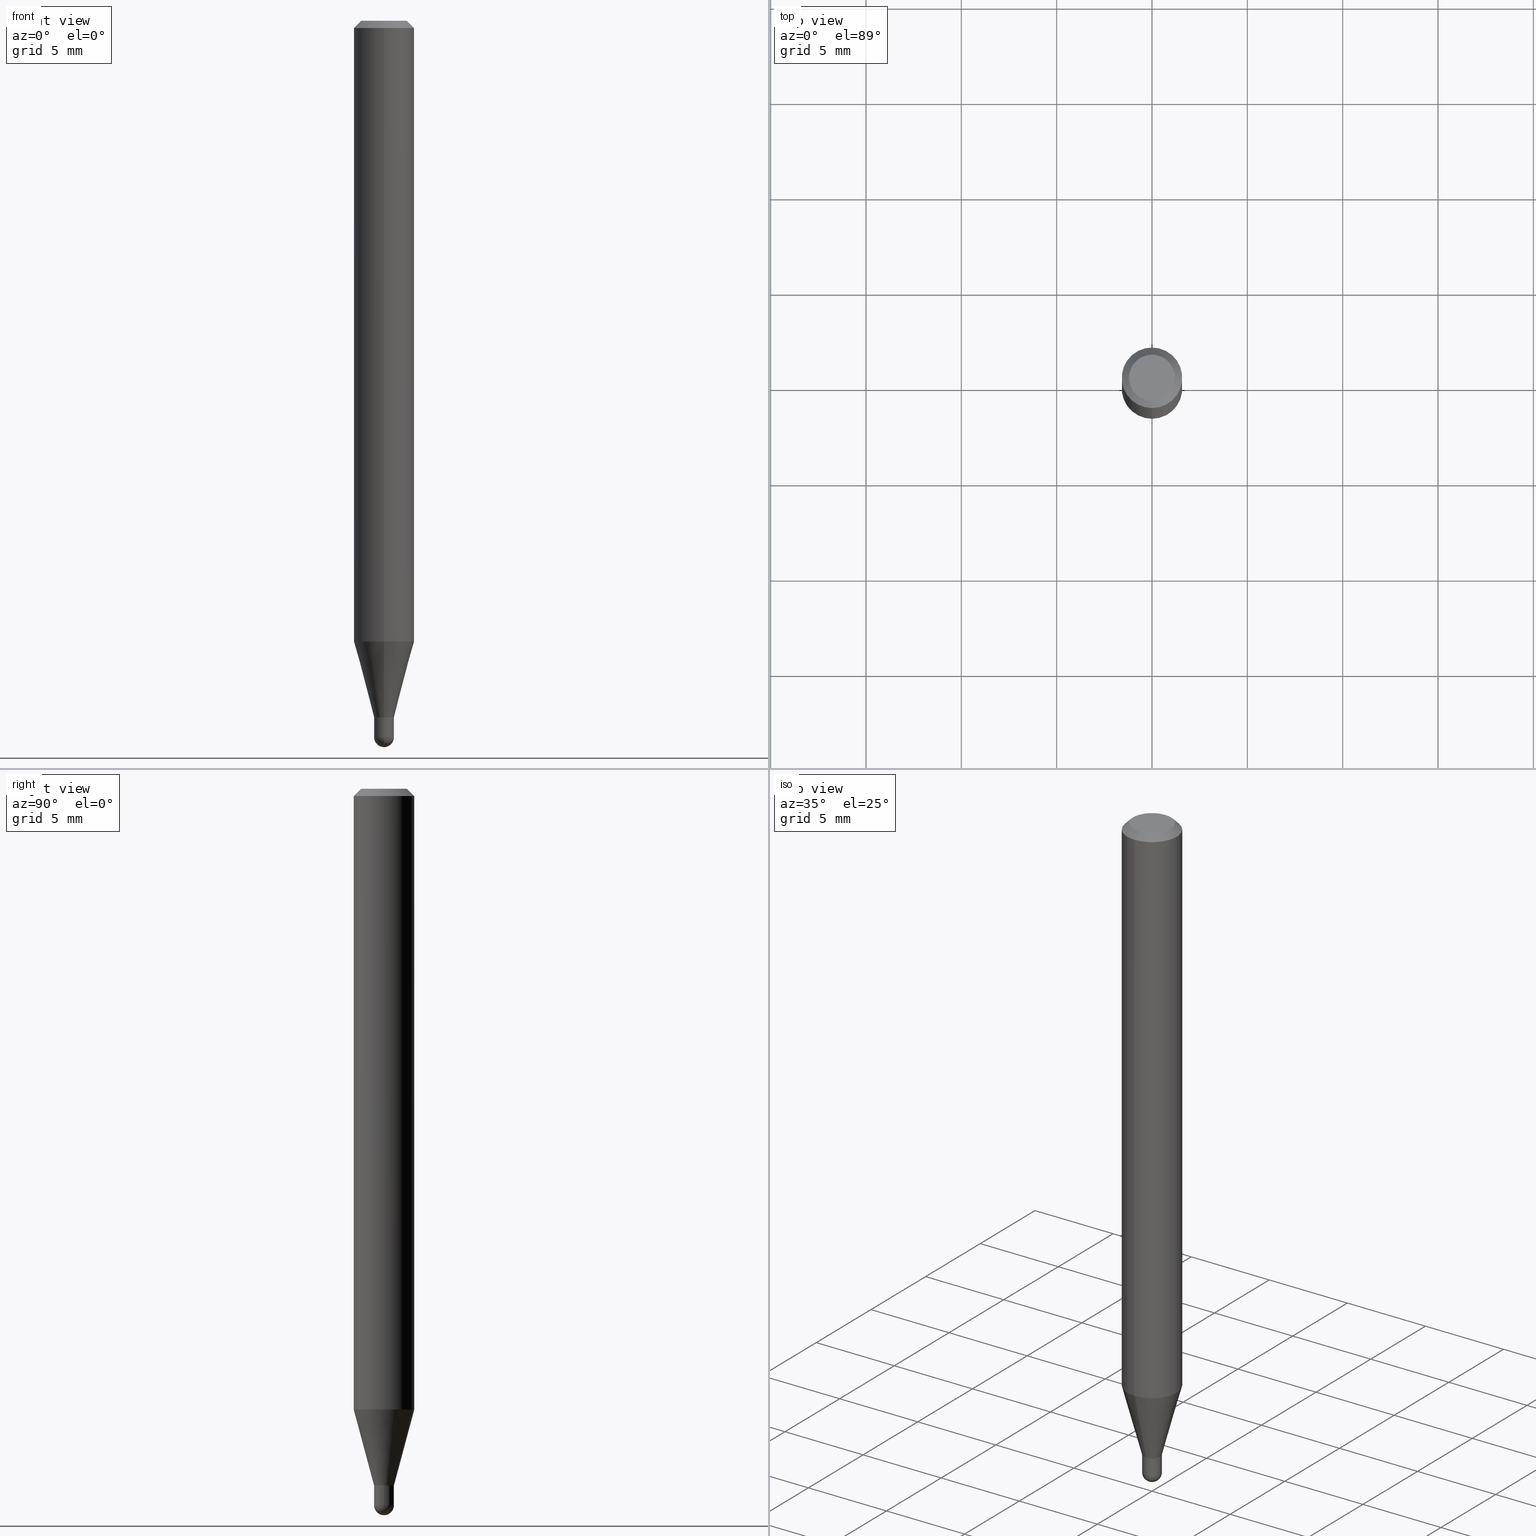
[diagram: canonical four-view strip — front | top / right | iso, engineering-drawing reading convention]
A machine part, canonical four-view strip (front | top / right | iso — engineering-drawing reading convention). The complete STEP part file that produces these views, byte-faithful:
ISO-10303-21;
HEADER;
FILE_DESCRIPTION (( 'STEP AP203' ),
    '1' );
FILE_NAME ('01398.STEP',
    '2024-03-07T20:21:30',
    ( '' ),
    ( '' ),
    'SwSTEP 2.0',
    'SolidWorks 2023',
    '' );
FILE_SCHEMA (( 'CONFIG_CONTROL_DESIGN' ));
ENDSEC;

DATA;
#1 = CARTESIAN_POINT ( 'NONE',  ( 3.668218837079728952E-31, -5.237199628362747541E-17, -0.01500000000000000812 ) ) ;
#2 = PERSON_AND_ORGANIZATION_ROLE ( 'classification_officer' ) ;
#3 = EDGE_LOOP ( 'NONE', ( #249, #281, #219, #171 ) ) ;
#4 = CARTESIAN_POINT ( 'NONE',  ( 0.000000000000000000, 0.000000000000000000, 0.000000000000000000 ) ) ;
#5 = VERTEX_POINT ( 'NONE', #375 ) ;
#6 = CARTESIAN_POINT ( 'NONE',  ( 3.517821864759459071E-29, -5.022474443599872602E-15, -1.438500000000000334 ) ) ;
#7 = ORIENTED_EDGE ( 'NONE', *, *, #144, .T. ) ;
#8 = CIRCLE ( 'NONE', #387, 0.02050000000000011535 ) ;
#9 = CIRCLE ( 'NONE', #301, 0.02050000000000000086 ) ;
#10 = PLANE ( 'NONE',  #308 ) ;
#11 = EDGE_LOOP ( 'NONE', ( #134, #333, #376, #290 ) ) ;
#12 = COORDINATED_UNIVERSAL_TIME_OFFSET ( 5, 0, .BEHIND. ) ;
#13 = DIRECTION ( 'NONE',  ( -2.445479224719817293E-29, 3.491466418908496323E-15, 1.000000000000000000 ) ) ;
#14 = EDGE_LOOP ( 'NONE', ( #81, #296, #241, #278 ) ) ;
#15 = EDGE_LOOP ( 'NONE', ( #240, #491, #392, #142 ) ) ;
#16 = CC_DESIGN_DATE_AND_TIME_ASSIGNMENT ( #28, #185, ( #71 ) ) ;
#17 = CARTESIAN_POINT ( 'NONE',  ( -4.364351673553916201E-16, -0.06250000000000000000, 2.182166511817810202E-16 ) ) ;
#18 = AXIS2_PLACEMENT_3D ( 'NONE', #80, #82, #159 ) ;
#19 = ADVANCED_FACE ( 'NONE', ( #366 ), #258, .T. ) ;
#20 = DIRECTION ( 'NONE',  ( 6.982962677686265922E-15, 1.000000000000000000, -3.491466418908496323E-15 ) ) ;
#21 = MANIFOLD_SOLID_BREP ( 'Body-Move/Copy2[1]', #191 ) ;
#22 = CARTESIAN_POINT ( 'NONE',  ( 3.516599125147098644E-29, -5.020728710390418378E-15, -1.438000000000000389 ) ) ;
#23 = ORIENTED_EDGE ( 'NONE', *, *, #34, .T. ) ;
#24 =( NAMED_UNIT ( * ) SI_UNIT ( $, .STERADIAN. ) SOLID_ANGLE_UNIT ( ) );
#25 = VERTEX_POINT ( 'NONE', #303 ) ;
#26 = AXIS2_PLACEMENT_3D ( 'NONE', #365, #166, #322 ) ;
#27 = CARTESIAN_POINT ( 'NONE',  ( 3.134502450708113125E-29, -4.475200580731833085E-15, -1.281753866082112392 ) ) ;
#28 = DATE_AND_TIME ( #106, #283 ) ;
#29 = CARTESIAN_POINT ( 'NONE',  ( 3.618071098750910685E-29, -5.165646640818435742E-15, -1.479500000000000481 ) ) ;
#30 = CARTESIAN_POINT ( 'NONE',  ( 2.166946058973634452E-46, -3.093798270708835562E-32, -8.861028288726947294E-18 ) ) ;
#31 = SPHERICAL_SURFACE ( 'NONE', #418, 0.02050000000000011535 ) ;
#32 = PRODUCT ( '01398', '01398', '', ( #500 ) ) ;
#33 = APPLICATION_CONTEXT ( 'configuration controlled 3d designs of mechanical parts and assemblies' ) ;
#34 = EDGE_CURVE ( 'NONE', #209, #314, #439, .T. ) ;
#35 = EDGE_CURVE ( 'NONE', #314, #105, #183, .T. ) ;
#36 = DIRECTION ( 'NONE',  ( -6.982962677686265133E-15, -1.000000000000000000, 0.000000000000000000 ) ) ;
#37 = DIRECTION ( 'NONE',  ( -6.982962677686265922E-15, -1.000000000000000000, 4.370956789862821150E-15 ) ) ;
#38 = ADVANCED_FACE ( 'NONE', ( #117 ), #506, .T. ) ;
#39 = CARTESIAN_POINT ( 'NONE',  ( -1.431507348925679025E-16, -0.02049999999999992453, 7.157506158762391154E-17 ) ) ;
#40 = EDGE_CURVE ( 'NONE', #105, #479, #459, .T. ) ;
#41 = ORIENTED_EDGE ( 'NONE', *, *, #237, .T. ) ;
#42 = CARTESIAN_POINT ( 'NONE',  ( -1.396592535536901362E-16, -0.02000000000000502418, -1.438500000000000334 ) ) ;
#43 = VECTOR ( 'NONE', #339, 39.37007874015748143 ) ;
#44 = DIRECTION ( 'NONE',  ( -2.445479224719817573E-29, 3.491466418908496323E-15, 1.000000000000000000 ) ) ;
#45 = ORIENTED_EDGE ( 'NONE', *, *, #379, .T. ) ;
#46 = DIRECTION ( 'NONE',  ( -6.982962677686265922E-15, -1.000000000000000000, 3.483106191921935554E-15 ) ) ;
#47 = DATE_AND_TIME ( #430, #371 ) ;
#48 = DIRECTION ( 'NONE',  ( -6.982962677686267499E-15, -1.000000000000000000, 0.000000000000000000 ) ) ;
#49 = FACE_OUTER_BOUND ( 'NONE', #443, .T. ) ;
#50 = ORIENTED_EDGE ( 'NONE', *, *, #379, .F. ) ;
#51 = CALENDAR_DATE ( 2024, 7, 3 ) ;
#52 = CARTESIAN_POINT ( 'NONE',  ( 3.517821864759459071E-29, -5.022474443599872602E-15, -1.438500000000000334 ) ) ;
#53 = VERTEX_POINT ( 'NONE', #145 ) ;
#54 = EDGE_CURVE ( 'NONE', #409, #167, #291, .T. ) ;
#55 = DIRECTION ( 'NONE',  ( 1.000000000000000000, -6.982962677686262766E-15, 0.000000000000000000 ) ) ;
#56 = FACE_OUTER_BOUND ( 'NONE', #462, .T. ) ;
#57 = ORIENTED_EDGE ( 'NONE', *, *, #127, .T. ) ;
#58 = CARTESIAN_POINT ( 'NONE',  ( 3.517806877697320021E-29, -5.022495905925865349E-15, -1.438500000000000334 ) ) ;
#59 = AXIS2_PLACEMENT_3D ( 'NONE', #4, #44, #154 ) ;
#60 = DIRECTION ( 'NONE',  ( 2.445479224719817293E-29, -3.491466418908496323E-15, -1.000000000000000000 ) ) ;
#61 = ORGANIZATION ( 'UNSPECIFIED', 'UNSPECIFIED', '' ) ;
#62 = VERTEX_POINT ( 'NONE', #70 ) ;
#63 = CARTESIAN_POINT ( 'NONE',  ( 4.440892098500625669E-16, 0.06250000000000000000, -2.182166511817810202E-16 ) ) ;
#64 = EDGE_LOOP ( 'NONE', ( #129, #50, #323, #132 ) ) ;
#65 = COORDINATED_UNIVERSAL_TIME_OFFSET ( 5, 0, .BEHIND. ) ;
#66 = DIRECTION ( 'NONE',  ( 1.000000000000000000, -6.982962677686267499E-15, 4.876176775795935232E-29 ) ) ;
#67 = DIRECTION ( 'NONE',  ( -2.445479224719817573E-29, 3.491466418908496323E-15, 1.000000000000000000 ) ) ;
#68 = SECURITY_CLASSIFICATION ( '', '', #242 ) ;
#69 =( LENGTH_UNIT ( ) NAMED_UNIT ( * ) SI_UNIT ( $, .METRE. ) );
#70 = CARTESIAN_POINT ( 'NONE',  ( 1.456612608308546378E-16, 0.02049999999999483138, -1.438000000000000389 ) ) ;
#71 = PRODUCT_DEFINITION ( 'UNKNOWN', '', #293, #188 ) ;
#72 = EDGE_CURVE ( 'NONE', #214, #369, #172, .T. ) ;
#73 = CARTESIAN_POINT ( 'NONE',  ( 0.02050000000000000086, -1.431507348925684942E-16, 9.996162390381667465E-31 ) ) ;
#74 = CARTESIAN_POINT ( 'NONE',  ( 3.618071098750910685E-29, -5.165646640818435742E-15, -1.479500000000000481 ) ) ;
#75 = AXIS2_PLACEMENT_3D ( 'NONE', #424, #67, #36 ) ;
#76 = CONICAL_SURFACE ( 'NONE', #26, 0.02049999999999992106, 0.2617993877991575680 ) ;
#77 = ADVANCED_FACE ( 'NONE', ( #348 ), #269, .T. ) ;
#78 = CARTESIAN_POINT ( 'NONE',  ( 0.000000000000000000, 0.000000000000000000, 0.000000000000000000 ) ) ;
#79 = PERSON_AND_ORGANIZATION_ROLE ( 'creator' ) ;
#80 = CARTESIAN_POINT ( 'NONE',  ( 0.000000000000000000, 0.000000000000000000, 0.000000000000000000 ) ) ;
#81 = ORIENTED_EDGE ( 'NONE', *, *, #401, .F. ) ;
#82 = DIRECTION ( 'NONE',  ( -2.445468806185136597E-29, 3.491481338843145583E-15, 1.000000000000000000 ) ) ;
#83 = AXIS2_PLACEMENT_3D ( 'NONE', #194, #118, #66 ) ;
#84 = AXIS2_PLACEMENT_3D ( 'NONE', #6, #403, #394 ) ;
#85 = EDGE_CURVE ( 'NONE', #479, #105, #495, .T. ) ;
#86 = CIRCLE ( 'NONE', #498, 0.06250000000000000000 ) ;
#87 = EDGE_LOOP ( 'NONE', ( #395, #417, #450, #460 ) ) ;
#88 = FACE_OUTER_BOUND ( 'NONE', #87, .T. ) ;
#89 = DIRECTION ( 'NONE',  ( -2.445479224719817573E-29, 3.491466418908496323E-15, 1.000000000000000000 ) ) ;
#90 = ORIENTED_EDGE ( 'NONE', *, *, #476, .T. ) ;
#91 = CALENDAR_DATE ( 2024, 7, 3 ) ;
#92 = CARTESIAN_POINT ( 'NONE',  ( -3.773273898774340269E-16, -0.04749999999999999362, 1.569836266094266006E-16 ) ) ;
#93 = CARTESIAN_POINT ( 'NONE',  ( 3.316907271900976096E-16, 0.04749999999999999362, -1.702751690425170292E-16 ) ) ;
#94 = ORIENTED_EDGE ( 'NONE', *, *, #474, .F. ) ;
#95 = DIRECTION ( 'NONE',  ( 1.000000000000000000, -7.105427357601001070E-15, 4.926315508542082329E-29 ) ) ;
#96 = DIRECTION ( 'NONE',  ( -2.445479224719817573E-29, 3.491466418908496323E-15, 1.000000000000000000 ) ) ;
#97 = ORIENTED_EDGE ( 'NONE', *, *, #160, .T. ) ;
#98 = PERSON_AND_ORGANIZATION ( #349, #61 ) ;
#99 = CIRCLE ( 'NONE', #84, 0.02000000000000000042 ) ;
#100 = LINE ( 'NONE', #332, #370 ) ;
#101 = CC_DESIGN_APPROVAL ( #114, ( #71 ) ) ;
#102 = VERTEX_POINT ( 'NONE', #383 ) ;
#103 = APPROVAL_STATUS ( 'not_yet_approved' ) ;
#104 = DIRECTION ( 'NONE',  ( -2.445468806185136877E-29, 3.491481338843145188E-15, 1.000000000000000000 ) ) ;
#105 = VERTEX_POINT ( 'NONE', #389 ) ;
#106 = CALENDAR_DATE ( 2024, 7, 3 ) ;
#107 = EDGE_CURVE ( 'NONE', #209, #479, #295, .T. ) ;
#108 = CARTESIAN_POINT ( 'NONE',  ( 0.000000000000000000, 0.000000000000000000, 0.000000000000000000 ) ) ;
#109 = CARTESIAN_POINT ( 'NONE',  ( 4.440892098500940720E-16, 0.06249999999999993755, -0.01500000000000022669 ) ) ;
#110 = AXIS2_PLACEMENT_3D ( 'NONE', #30, #265, #298 ) ;
#111 = CIRCLE ( 'NONE', #215, 0.02049999999999999739 ) ;
#112 = CARTESIAN_POINT ( 'NONE',  ( 3.840629472727447874E-16, 0.04749999999999999362, -1.747056831868805136E-16 ) ) ;
#113 = CC_DESIGN_SECURITY_CLASSIFICATION ( #68, ( #293 ) ) ;
#114 = APPROVAL ( #103, 'UNSPECIFIED' ) ;
#115 = ADVANCED_FACE ( 'NONE', ( #464 ), #431, .T. ) ;
#116 = DIRECTION ( 'NONE',  ( 1.000000000000000000, 0.000000000000000000, 0.000000000000000000 ) ) ;
#117 = FACE_OUTER_BOUND ( 'NONE', #411, .T. ) ;
#118 = DIRECTION ( 'NONE',  ( -2.445468806185136597E-29, 3.491481338843145583E-15, 1.000000000000000000 ) ) ;
#119 = CLOSED_SHELL ( 'NONE', ( #233, #250, #77, #19, #362, #354, #115, #200, #285, #313, #402, #226 ) ) ;
#120 = AXIS2_PLACEMENT_3D ( 'NONE', #413, #177, #458 ) ;
#121 = ORIENTED_EDGE ( 'NONE', *, *, #107, .T. ) ;
#122 = DIRECTION ( 'NONE',  ( -2.445479224719817573E-29, 3.491466418908496323E-15, 1.000000000000000000 ) ) ;
#123 = ORIENTED_EDGE ( 'NONE', *, *, #199, .T. ) ;
#124 = AXIS2_PLACEMENT_3D ( 'NONE', #78, #122, #441 ) ;
#125 = VECTOR ( 'NONE', #190, 39.37007874015748143 ) ;
#126 = EDGE_LOOP ( 'NONE', ( #286, #335, #168, #211 ) ) ;
#127 = EDGE_CURVE ( 'NONE', #102, #214, #466, .T. ) ;
#128 = FACE_OUTER_BOUND ( 'NONE', #202, .T. ) ;
#129 = ORIENTED_EDGE ( 'NONE', *, *, #280, .F. ) ;
#130 = PERSON_AND_ORGANIZATION ( #349, #61 ) ;
#131 = DIRECTION ( 'NONE',  ( 4.937700262164548042E-15, 0.7071067811865451302, -0.7071067811865499042 ) ) ;
#132 = ORIENTED_EDGE ( 'NONE', *, *, #304, .T. ) ;
#133 = DIRECTION ( 'NONE',  ( -2.445479224719817573E-29, 3.491466418908496323E-15, 1.000000000000000000 ) ) ;
#134 = ORIENTED_EDGE ( 'NONE', *, *, #340, .F. ) ;
#135 = ORIENTED_EDGE ( 'NONE', *, *, #257, .F. ) ;
#136 = DIRECTION ( 'NONE',  ( 7.105427357601000281E-15, 1.000000000000000000, 0.000000000000000000 ) ) ;
#137 = VERTEX_POINT ( 'NONE', #512 ) ;
#138 = EDGE_CURVE ( 'NONE', #102, #353, #461, .T. ) ;
#139 = AXIS2_PLACEMENT_3D ( 'NONE', #150, #232, #428 ) ;
#140 = AXIS2_PLACEMENT_3D ( 'NONE', #444, #412, #55 ) ;
#141 = ORIENTED_EDGE ( 'NONE', *, *, #184, .F. ) ;
#142 = ORIENTED_EDGE ( 'NONE', *, *, #358, .F. ) ;
#143 = CARTESIAN_POINT ( 'NONE',  ( 0.000000000000000000, 0.000000000000000000, 0.000000000000000000 ) ) ;
#144 = EDGE_CURVE ( 'NONE', #62, #176, #274, .T. ) ;
#145 = CARTESIAN_POINT ( 'NONE',  ( -1.396592535536901362E-16, -0.02000000000000502418, -1.438500000000000334 ) ) ;
#146 =( NAMED_UNIT ( * ) PLANE_ANGLE_UNIT ( ) SI_UNIT ( $, .RADIAN. ) );
#147 = CARTESIAN_POINT ( 'NONE',  ( 3.134502450708113125E-29, -4.475200580731833085E-15, -1.281753866082112392 ) ) ;
#148 = DIRECTION ( 'NONE',  ( 0.000000000000000000, 0.000000000000000000, 1.000000000000000000 ) ) ;
#149 = AXIS2_PLACEMENT_3D ( 'NONE', #108, #386, #429 ) ;
#150 = CARTESIAN_POINT ( 'NONE',  ( 3.668218837079728952E-31, -5.237199628362747541E-17, -0.01500000000000000812 ) ) ;
#151 = APPROVAL_PERSON_ORGANIZATION ( #207, #511, #320 ) ;
#152 = CARTESIAN_POINT ( 'NONE',  ( 3.616318007858092069E-29, -5.168157166756686411E-15, -1.479500000000000259 ) ) ;
#153 = DIRECTION ( 'NONE',  ( -2.445479224719817573E-29, 3.491466418908496323E-15, 1.000000000000000000 ) ) ;
#154 = DIRECTION ( 'NONE',  ( -6.982962677686265133E-15, -1.000000000000000000, 3.491466418908496323E-15 ) ) ;
#155 = AXIS2_PLACEMENT_3D ( 'NONE', #225, #501, #422 ) ;
#156 = DIRECTION ( 'NONE',  ( 2.445479224719817573E-29, -3.491466418908496323E-15, -1.000000000000000000 ) ) ;
#157 = CIRCLE ( 'NONE', #448, 0.02049999999999992106 ) ;
#158 = APPROVAL ( #469, 'UNSPECIFIED' ) ;
#159 = DIRECTION ( 'NONE',  ( 1.000000000000000000, -6.982962677686267499E-15, 4.876176775795935232E-29 ) ) ;
#160 = EDGE_CURVE ( 'NONE', #167, #409, #206, .T. ) ;
#161 = EDGE_LOOP ( 'NONE', ( #41, #90 ) ) ;
#162 = FACE_OUTER_BOUND ( 'NONE', #11, .T. ) ;
#163 = CONICAL_SURFACE ( 'NONE', #378, 0.02049999999999992106, 0.2617993877991575680 ) ;
#164 = CARTESIAN_POINT ( 'NONE',  ( 3.616318007858092069E-29, -5.168157166756686411E-15, -1.479500000000000259 ) ) ;
#165 = ADVANCED_FACE ( 'NONE', ( #503 ), #31, .T. ) ;
#166 = DIRECTION ( 'NONE',  ( -2.445479224719817573E-29, 3.491466418908496323E-15, 1.000000000000000000 ) ) ;
#167 = VERTEX_POINT ( 'NONE', #112 ) ;
#168 = ORIENTED_EDGE ( 'NONE', *, *, #505, .F. ) ;
#169 = DIRECTION ( 'NONE',  ( 2.438088387897960049E-29, -3.491481338843145188E-15, -1.000000000000000000 ) ) ;
#170 = FACE_OUTER_BOUND ( 'NONE', #361, .T. ) ;
#171 = ORIENTED_EDGE ( 'NONE', *, *, #218, .F. ) ;
#172 = CIRCLE ( 'NONE', #396, 0.02049999999999999739 ) ;
#173 = DIRECTION ( 'NONE',  ( -1.000000000000000000, 6.982962677686265922E-15, -4.876176775795935793E-29 ) ) ;
#174 = DIRECTION ( 'NONE',  ( -4.851104656540964275E-15, -0.7071067811865500152, -0.7071067811865450192 ) ) ;
#175 = ORIENTED_EDGE ( 'NONE', *, *, #138, .F. ) ;
#176 = VERTEX_POINT ( 'NONE', #311 ) ;
#177 = DIRECTION ( 'NONE',  ( -2.445479224719817573E-29, 3.491466418908496323E-15, 1.000000000000000000 ) ) ;
#178 = CC_DESIGN_PERSON_AND_ORGANIZATION_ASSIGNMENT ( #267, #79, ( #293 ) ) ;
#179 = ORIENTED_EDGE ( 'NONE', *, *, #40, .F. ) ;
#180 = PERSON_AND_ORGANIZATION_ROLE ( 'design_owner' ) ;
#181 = CALENDAR_DATE ( 2024, 7, 3 ) ;
#182 = CC_DESIGN_APPROVAL ( #511, ( #68 ) ) ;
#183 = LINE ( 'NONE', #346, #43 ) ;
#184 = EDGE_CURVE ( 'NONE', #314, #176, #201, .T. ) ;
#185 = DATE_TIME_ROLE ( 'creation_date' ) ;
#186 = DIRECTION ( 'NONE',  ( -2.445468806185136597E-29, 3.491481338843145583E-15, 1.000000000000000000 ) ) ;
#187 = CARTESIAN_POINT ( 'NONE',  ( 1.456612608308551308E-16, 0.02049999999999489730, -1.438500000000000556 ) ) ;
#188 = DESIGN_CONTEXT ( 'detailed design', #384, 'design' ) ;
#189 = CARTESIAN_POINT ( 'NONE',  ( 3.616318007858092069E-29, -5.168157166756686411E-15, -1.479500000000000259 ) ) ;
#190 = DIRECTION ( 'NONE',  ( -2.445479224719817573E-29, 3.491466418908496323E-15, 1.000000000000000000 ) ) ;
#191 = CLOSED_SHELL ( 'NONE', ( #216, #499, #435, #165, #38 ) ) ;
#192 = AXIS2_PLACEMENT_3D ( 'NONE', #238, #89, #46 ) ;
#193 = MANIFOLD_SOLID_BREP ( 'Body-Move/Copy2[2]', #119 ) ;
#194 = CARTESIAN_POINT ( 'NONE',  ( 0.000000000000000000, 0.000000000000000000, 0.000000000000000000 ) ) ;
#195 = DIRECTION ( 'NONE',  ( -2.445468806185136597E-29, 3.491481338843145583E-15, 1.000000000000000000 ) ) ;
#196 = SHAPE_DEFINITION_REPRESENTATION ( #212, #438 ) ;
#197 = CONICAL_SURFACE ( 'NONE', #120, 0.02000000000000000042, 0.7853981633974739252 ) ;
#198 = APPROVAL_PERSON_ORGANIZATION ( #130, #158, #393 ) ;
#199 = EDGE_CURVE ( 'NONE', #53, #288, #99, .T. ) ;
#200 = ADVANCED_FACE ( 'NONE', ( #162 ), #432, .T. ) ;
#201 = LINE ( 'NONE', #39, #227 ) ;
#202 = EDGE_LOOP ( 'NONE', ( #255, #135 ) ) ;
#203 = DIRECTION ( 'NONE',  ( -2.445479224719817573E-29, 3.491466418908496323E-15, 1.000000000000000000 ) ) ;
#204 = ORIENTED_EDGE ( 'NONE', *, *, #222, .F. ) ;
#205 = LINE ( 'NONE', #42, #300 ) ;
#206 = CIRCLE ( 'NONE', #345, 0.04749999999999999362 ) ;
#207 = PERSON_AND_ORGANIZATION ( #349, #61 ) ;
#208 = VECTOR ( 'NONE', #482, 39.37007874015748143 ) ;
#209 = VERTEX_POINT ( 'NONE', #434 ) ;
#210 = DIRECTION ( 'NONE',  ( -2.445468806185136877E-29, 3.491481338843145188E-15, 1.000000000000000000 ) ) ;
#211 = ORIENTED_EDGE ( 'NONE', *, *, #477, .F. ) ;
#212 = PRODUCT_DEFINITION_SHAPE ( 'NONE', 'NONE',  #71 ) ;
#213 = DIRECTION ( 'NONE',  ( -2.445468806185136597E-29, 3.491481338843145583E-15, 1.000000000000000000 ) ) ;
#214 = VERTEX_POINT ( 'NONE', #236 ) ;
#215 = AXIS2_PLACEMENT_3D ( 'NONE', #29, #186, #504 ) ;
#216 = ADVANCED_FACE ( 'NONE', ( #391 ), #442, .T. ) ;
#217 = CARTESIAN_POINT ( 'NONE',  ( 1.421085471520551937E-16, 0.01999999999999497666, -1.438500000000000334 ) ) ;
#218 = EDGE_CURVE ( 'NONE', #487, #273, #239, .T. ) ;
#219 = ORIENTED_EDGE ( 'NONE', *, *, #477, .T. ) ;
#220 = SPHERICAL_SURFACE ( 'NONE', #473, 0.02050000000000011535 ) ;
#221 = DIRECTION ( 'NONE',  ( -6.982962677686265922E-15, -1.000000000000000000, 0.000000000000000000 ) ) ;
#222 = EDGE_CURVE ( 'NONE', #53, #176, #205, .T. ) ;
#223 = ORIENTED_EDGE ( 'NONE', *, *, #381, .T. ) ;
#224 = DATE_AND_TIME ( #181, #316 ) ;
#225 = CARTESIAN_POINT ( 'NONE',  ( 3.517821864759459632E-29, -5.022474443599874180E-15, -1.438500000000000556 ) ) ;
#226 = ADVANCED_FACE ( 'NONE', ( #356 ), #398, .F. ) ;
#227 = VECTOR ( 'NONE', #203, 39.37007874015748143 ) ;
#228 = CIRCLE ( 'NONE', #140, 0.02049999999999999739 ) ;
#229 = CARTESIAN_POINT ( 'NONE',  ( 3.517821864759459632E-29, -5.022474443599874180E-15, -1.438500000000000556 ) ) ;
#230 = CARTESIAN_POINT ( 'NONE',  ( 2.166946058973634452E-46, -3.093798270708835562E-32, -8.861028288726947294E-18 ) ) ;
#231 = DIRECTION ( 'NONE',  ( -2.445468806185136597E-29, 3.491481338843145583E-15, 1.000000000000000000 ) ) ;
#232 = DIRECTION ( 'NONE',  ( 2.445479224719817573E-29, -3.491466418908496323E-15, -1.000000000000000000 ) ) ;
#233 = ADVANCED_FACE ( 'NONE', ( #312 ), #306, .F. ) ;
#234 = CIRCLE ( 'NONE', #485, 0.02000000000000000042 ) ;
#235 = DIRECTION ( 'NONE',  ( -6.982962677686265922E-15, -1.000000000000000000, 3.491466418908496323E-15 ) ) ;
#236 = CARTESIAN_POINT ( 'NONE',  ( 1.456612608308570783E-16, 0.02049999999999488690, -1.479500000000000481 ) ) ;
#237 = EDGE_CURVE ( 'NONE', #353, #137, #355, .T. ) ;
#238 = CARTESIAN_POINT ( 'NONE',  ( 3.668218837079728952E-31, -5.237199628362747541E-17, -0.01500000000000000812 ) ) ;
#239 = CIRCLE ( 'NONE', #192, 0.06250000000000000000 ) ;
#240 = ORIENTED_EDGE ( 'NONE', *, *, #54, .F. ) ;
#241 = ORIENTED_EDGE ( 'NONE', *, *, #127, .F. ) ;
#242 = SECURITY_CLASSIFICATION_LEVEL ( 'unclassified' ) ;
#243 = CARTESIAN_POINT ( 'NONE',  ( 1.438849039914551500E-16, 0.01999999999999497666, -1.438500000000000334 ) ) ;
#244 = PERSON_AND_ORGANIZATION ( #349, #61 ) ;
#245 = LOCAL_TIME ( 15, 21, 30.00000000000000000, #12 ) ;
#246 = FACE_OUTER_BOUND ( 'NONE', #161, .T. ) ;
#247 = CARTESIAN_POINT ( 'NONE',  ( -4.287811248607203282E-16, -0.06250000000000005551, -0.01499999999999979128 ) ) ;
#248 = ORIENTED_EDGE ( 'NONE', *, *, #72, .T. ) ;
#249 = ORIENTED_EDGE ( 'NONE', *, *, #481, .F. ) ;
#250 = ADVANCED_FACE ( 'NONE', ( #449 ), #197, .T. ) ;
#251 = EDGE_LOOP ( 'NONE', ( #123, #310, #421, #204 ) ) ;
#252 = DIRECTION ( 'NONE',  ( -6.982962677686265133E-15, -1.000000000000000000, 0.000000000000000000 ) ) ;
#253 = EDGE_LOOP ( 'NONE', ( #372, #328, #7, #141 ) ) ;
#254 = CARTESIAN_POINT ( 'NONE',  ( 3.668218837079728952E-31, -5.237199628362747541E-17, -0.01500000000000000812 ) ) ;
#255 = ORIENTED_EDGE ( 'NONE', *, *, #199, .F. ) ;
#256 = APPROVAL_ROLE ( '' ) ;
#257 = EDGE_CURVE ( 'NONE', #288, #53, #234, .T. ) ;
#258 = CYLINDRICAL_SURFACE ( 'NONE', #307, 0.06250000000000000000 ) ;
#259 = DIRECTION ( 'NONE',  ( -6.982962677686265133E-15, -1.000000000000000000, 0.000000000000000000 ) ) ;
#260 = DIRECTION ( 'NONE',  ( 1.000000000000000000, -6.982962677686262766E-15, 0.000000000000000000 ) ) ;
#261 = UNCERTAINTY_MEASURE_WITH_UNIT (LENGTH_MEASURE( 1.000000000000000082E-05 ), #502, 'distance_accuracy_value', 'NONE');
#262 = LINE ( 'NONE', #63, #125 ) ;
#263 = AXIS2_PLACEMENT_3D ( 'NONE', #351, #309, #475 ) ;
#264 = DIRECTION ( 'NONE',  ( -6.982962677686265922E-15, -1.000000000000000000, 4.370956789862821150E-15 ) ) ;
#265 = DIRECTION ( 'NONE',  ( -2.445479224719817573E-29, 3.491466418908496323E-15, 1.000000000000000000 ) ) ;
#266 = CC_DESIGN_PERSON_AND_ORGANIZATION_ASSIGNMENT ( #350, #404, ( #293 ) ) ;
#267 = PERSON_AND_ORGANIZATION ( #349, #61 ) ;
#268 = DIRECTION ( 'NONE',  ( 1.000000000000000000, -6.982962677686262766E-15, 0.000000000000000000 ) ) ;
#269 = CONICAL_SURFACE ( 'NONE', #139, 0.06250000000000000000, 0.7853981633974483900 ) ;
#270 = VECTOR ( 'NONE', #104, 39.37007874015748143 ) ;
#271 = AXIS2_PLACEMENT_3D ( 'NONE', #143, #148, #116 ) ;
#272 = EDGE_CURVE ( 'NONE', #25, #214, #8, .T. ) ;
#273 = VERTEX_POINT ( 'NONE', #368 ) ;
#274 = CIRCLE ( 'NONE', #75, 0.02049999999999992453 ) ;
#275 = ORIENTED_EDGE ( 'NONE', *, *, #138, .T. ) ;
#276 = DIRECTION ( 'NONE',  ( 6.982962677686265922E-15, 1.000000000000000000, -3.483106191921935554E-15 ) ) ;
#277 = DATE_AND_TIME ( #91, #480 ) ;
#278 = ORIENTED_EDGE ( 'NONE', *, *, #381, .F. ) ;
#279 = DIRECTION ( 'NONE',  ( -2.445479224719817573E-29, 3.491466418908496323E-15, 1.000000000000000000 ) ) ;
#280 = EDGE_CURVE ( 'NONE', #209, #62, #100, .T. ) ;
#281 = ORIENTED_EDGE ( 'NONE', *, *, #85, .T. ) ;
#282 = VECTOR ( 'NONE', #131, 39.37007874015748143 ) ;
#283 = LOCAL_TIME ( 15, 21, 30.00000000000000000, #423 ) ;
#284 = DIRECTION ( 'NONE',  ( -6.982962677686265133E-15, -1.000000000000000000, 0.000000000000000000 ) ) ;
#285 = ADVANCED_FACE ( 'NONE', ( #56 ), #10, .F. ) ;
#286 = ORIENTED_EDGE ( 'NONE', *, *, #40, .T. ) ;
#287 = LINE ( 'NONE', #289, #472 ) ;
#288 = VERTEX_POINT ( 'NONE', #243 ) ;
#289 = CARTESIAN_POINT ( 'NONE',  ( -0.02050000000000000086, 1.456612608308205442E-16, -1.008381693502255795E-30 ) ) ;
#290 = ORIENTED_EDGE ( 'NONE', *, *, #218, .T. ) ;
#291 = CIRCLE ( 'NONE', #110, 0.04749999999999999362 ) ;
#292 = VECTOR ( 'NONE', #174, 39.37007874015748143 ) ;
#293 = PRODUCT_DEFINITION_FORMATION_WITH_SPECIFIED_SOURCE ( 'ANY', '', #32, .NOT_KNOWN. ) ;
#294 = DIRECTION ( 'NONE',  ( -6.982962677686265922E-15, -1.000000000000000000, 3.483106191921935554E-15 ) ) ;
#295 = LINE ( 'NONE', #187, #425 ) ;
#296 = ORIENTED_EDGE ( 'NONE', *, *, #272, .T. ) ;
#297 = PERSON_AND_ORGANIZATION ( #349, #61 ) ;
#298 = DIRECTION ( 'NONE',  ( -6.982962677686266711E-15, -1.000000000000000000, 3.491466418908496323E-15 ) ) ;
#299 = DIMENSIONAL_EXPONENTS ( 1.000000000000000000, 0.000000000000000000, 0.000000000000000000, 0.000000000000000000, 0.000000000000000000, 0.000000000000000000, 0.000000000000000000 ) ;
#300 = VECTOR ( 'NONE', #471, 39.37007874015748143 ) ;
#301 = AXIS2_PLACEMENT_3D ( 'NONE', #58, #213, #488 ) ;
#302 = DIRECTION ( 'NONE',  ( -2.445479224719817573E-29, 3.491466418908496323E-15, 1.000000000000000000 ) ) ;
#303 = CARTESIAN_POINT ( 'NONE',  ( 3.665573572938478934E-29, -5.240987797172098125E-15, -1.500000000000000444 ) ) ;
#304 = EDGE_CURVE ( 'NONE', #176, #62, #329, .T. ) ;
#305 = APPROVAL_DATE_TIME ( #277, #158 ) ;
#306 = CYLINDRICAL_SURFACE ( 'NONE', #124, 0.02049999999999992453 ) ;
#307 = AXIS2_PLACEMENT_3D ( 'NONE', #341, #465, #235 ) ;
#308 = AXIS2_PLACEMENT_3D ( 'NONE', #93, #60, #20 ) ;
#309 = DIRECTION ( 'NONE',  ( -2.445468806185136597E-29, 3.491481338843145583E-15, 1.000000000000000000 ) ) ;
#310 = ORIENTED_EDGE ( 'NONE', *, *, #456, .T. ) ;
#311 = CARTESIAN_POINT ( 'NONE',  ( -1.431507348925332420E-16, -0.02050000000000501768, -1.438000000000000389 ) ) ;
#312 = FACE_OUTER_BOUND ( 'NONE', #253, .T. ) ;
#313 = ADVANCED_FACE ( 'NONE', ( #128 ), #445, .F. ) ;
#314 = VERTEX_POINT ( 'NONE', #326 ) ;
#315 = AXIS2_PLACEMENT_3D ( 'NONE', #74, #195, #260 ) ;
#316 = LOCAL_TIME ( 15, 21, 30.00000000000000000, #65 ) ;
#317 = COORDINATED_UNIVERSAL_TIME_OFFSET ( 5, 0, .BEHIND. ) ;
#318 = DIRECTION ( 'NONE',  ( -2.445479224719817573E-29, 3.491466418908496323E-15, 1.000000000000000000 ) ) ;
#319 = EDGE_LOOP ( 'NONE', ( #248, #446, #414, #175, #57 ) ) ;
#320 = APPROVAL_ROLE ( '' ) ;
#321 = EDGE_CURVE ( 'NONE', #369, #137, #287, .T. ) ;
#322 = DIRECTION ( 'NONE',  ( -6.982962677686265133E-15, -1.000000000000000000, 0.000000000000000000 ) ) ;
#323 = ORIENTED_EDGE ( 'NONE', *, *, #184, .T. ) ;
#324 = ORIENTED_EDGE ( 'NONE', *, *, #72, .F. ) ;
#325 = LINE ( 'NONE', #217, #208 ) ;
#326 = CARTESIAN_POINT ( 'NONE',  ( -1.431507348925326996E-16, -0.02050000000000494482, -1.438500000000000556 ) ) ;
#327 = AXIS2_PLACEMENT_3D ( 'NONE', #27, #302, #264 ) ;
#328 = ORIENTED_EDGE ( 'NONE', *, *, #280, .T. ) ;
#329 = CIRCLE ( 'NONE', #440, 0.02049999999999992453 ) ;
#330 = AXIS2_PLACEMENT_3D ( 'NONE', #364, #169, #173 ) ;
#331 = DIRECTION ( 'NONE',  ( -6.982962677686265922E-15, -1.000000000000000000, 0.000000000000000000 ) ) ;
#332 = CARTESIAN_POINT ( 'NONE',  ( 1.456612608308199772E-16, 0.02049999999999992453, -7.157506158762391154E-17 ) ) ;
#333 = ORIENTED_EDGE ( 'NONE', *, *, #160, .F. ) ;
#334 = CARTESIAN_POINT ( 'NONE',  ( 3.517821864759459071E-29, -5.022474443599872602E-15, -1.438500000000000334 ) ) ;
#335 = ORIENTED_EDGE ( 'NONE', *, *, #481, .T. ) ;
#336 = ORIENTED_EDGE ( 'NONE', *, *, #85, .F. ) ;
#337 = CC_DESIGN_APPROVAL ( #158, ( #293 ) ) ;
#338 = APPROVAL_DATE_TIME ( #224, #114 ) ;
#339 = DIRECTION ( 'NONE',  ( -1.807323732225379443E-15, -0.2588190451025252359, 0.9659258262890670910 ) ) ;
#340 = EDGE_CURVE ( 'NONE', #409, #273, #406, .T. ) ;
#341 = CARTESIAN_POINT ( 'NONE',  ( 0.000000000000000000, 0.000000000000000000, 0.000000000000000000 ) ) ;
#342 = CC_DESIGN_PERSON_AND_ORGANIZATION_ASSIGNMENT ( #244, #2, ( #68 ) ) ;
#343 = DIRECTION ( 'NONE',  ( 1.000000000000000000, -6.982962677686266711E-15, 4.883557194083113462E-29 ) ) ;
#344 = PERSON_AND_ORGANIZATION ( #349, #61 ) ;
#345 = AXIS2_PLACEMENT_3D ( 'NONE', #230, #153, #380 ) ;
#346 = CARTESIAN_POINT ( 'NONE',  ( -1.431507348925326996E-16, -0.02050000000000494482, -1.438500000000000556 ) ) ;
#347 = DATE_TIME_ROLE ( 'classification_date' ) ;
#348 = FACE_OUTER_BOUND ( 'NONE', #15, .T. ) ;
#349 = PERSON ( 'UNSPECIFIED', 'UNSPECIFIED', 'UNSPECIFIED', ('UNSPECIFIED'), ('UNSPECIFIED'), ('UNSPECIFIED') ) ;
#350 = PERSON_AND_ORGANIZATION ( #349, #61 ) ;
#351 = CARTESIAN_POINT ( 'NONE',  ( 3.517806877697320021E-29, -5.022495905925865349E-15, -1.438500000000000334 ) ) ;
#352 = ORIENTED_EDGE ( 'NONE', *, *, #401, .T. ) ;
#353 = VERTEX_POINT ( 'NONE', #489 ) ;
#354 = ADVANCED_FACE ( 'NONE', ( #49 ), #76, .T. ) ;
#355 = CIRCLE ( 'NONE', #263, 0.02050000000000000086 ) ;
#356 = FACE_OUTER_BOUND ( 'NONE', #64, .T. ) ;
#357 = AXIS2_PLACEMENT_3D ( 'NONE', #147, #468, #37 ) ;
#358 = EDGE_CURVE ( 'NONE', #167, #487, #454, .T. ) ;
#359 = DATE_AND_TIME ( #51, #245 ) ;
#360 = CARTESIAN_POINT ( 'NONE',  ( 3.517821864759459071E-29, -5.022474443599872602E-15, -1.438500000000000334 ) ) ;
#361 = EDGE_LOOP ( 'NONE', ( #45, #121, #179, #455 ) ) ;
#362 = ADVANCED_FACE ( 'NONE', ( #170 ), #163, .T. ) ;
#363 = ORIENTED_EDGE ( 'NONE', *, *, #35, .T. ) ;
#364 = CARTESIAN_POINT ( 'NONE',  ( 1.431507348926036478E-16, 0.02049999999999497710, -1.438500000000000334 ) ) ;
#365 = CARTESIAN_POINT ( 'NONE',  ( 3.517821864759459632E-29, -5.022474443599874180E-15, -1.438500000000000556 ) ) ;
#366 = FACE_OUTER_BOUND ( 'NONE', #126, .T. ) ;
#367 = LINE ( 'NONE', #17, #419 ) ;
#368 = CARTESIAN_POINT ( 'NONE',  ( -4.364351673553912750E-16, -0.06250000000000005551, -0.01499999999999979128 ) ) ;
#369 = VERTEX_POINT ( 'NONE', #451 ) ;
#370 = VECTOR ( 'NONE', #374, 39.37007874015748143 ) ;
#371 = LOCAL_TIME ( 15, 21, 30.00000000000000000, #317 ) ;
#372 = ORIENTED_EDGE ( 'NONE', *, *, #34, .F. ) ;
#373 = DIRECTION ( 'NONE',  ( -2.445479224719817573E-29, 3.491466418908496323E-15, 1.000000000000000000 ) ) ;
#374 = DIRECTION ( 'NONE',  ( -2.445479224719817573E-29, 3.491466418908496323E-15, 1.000000000000000000 ) ) ;
#375 = CARTESIAN_POINT ( 'NONE',  ( -1.431507348925326996E-16, -0.02050000000000522585, -1.479500000000000481 ) ) ;
#376 = ORIENTED_EDGE ( 'NONE', *, *, #358, .T. ) ;
#377 = DIRECTION ( 'NONE',  ( 1.839019923739650408E-15, 0.2588190451025319527, 0.9659258262890650926 ) ) ;
#378 = AXIS2_PLACEMENT_3D ( 'NONE', #486, #133, #284 ) ;
#379 = EDGE_CURVE ( 'NONE', #314, #209, #157, .T. ) ;
#380 = DIRECTION ( 'NONE',  ( -6.982962677686266711E-15, -1.000000000000000000, 3.491466418908496323E-15 ) ) ;
#381 = EDGE_CURVE ( 'NONE', #5, #102, #111, .T. ) ;
#382 = DIRECTION ( 'NONE',  ( -2.445479224719817573E-29, 3.491466418908496323E-15, 1.000000000000000000 ) ) ;
#383 = CARTESIAN_POINT ( 'NONE',  ( 0.02049999999999999739, -5.237222008264718177E-15, -1.479500000000000481 ) ) ;
#384 = APPLICATION_CONTEXT ( 'configuration controlled 3d designs of mechanical parts and assemblies' ) ;
#385 = APPLICATION_PROTOCOL_DEFINITION ( 'international standard', 'config_control_design', 1994, #33 ) ;
#386 = DIRECTION ( 'NONE',  ( -2.445479224719817573E-29, 3.491466418908496323E-15, 1.000000000000000000 ) ) ;
#387 = AXIS2_PLACEMENT_3D ( 'NONE', #164, #95, #136 ) ;
#388 = CONICAL_SURFACE ( 'NONE', #433, 0.02000000000000000042, 0.7853981633974739252 ) ;
#389 = CARTESIAN_POINT ( 'NONE',  ( -4.364351673553603122E-16, -0.06250000000000449640, -1.281753866082112170 ) ) ;
#390 = APPROVAL_DATE_TIME ( #359, #511 ) ;
#391 = FACE_OUTER_BOUND ( 'NONE', #319, .T. ) ;
#392 = ORIENTED_EDGE ( 'NONE', *, *, #505, .T. ) ;
#393 = APPROVAL_ROLE ( '' ) ;
#394 = DIRECTION ( 'NONE',  ( -6.982962677686265922E-15, -1.000000000000000000, 0.000000000000000000 ) ) ;
#395 = ORIENTED_EDGE ( 'NONE', *, *, #456, .F. ) ;
#396 = AXIS2_PLACEMENT_3D ( 'NONE', #470, #231, #268 ) ;
#397 = AXIS2_PLACEMENT_3D ( 'NONE', #509, #478, #48 ) ;
#398 = CYLINDRICAL_SURFACE ( 'NONE', #59, 0.02049999999999992453 ) ;
#399 = ORIENTED_EDGE ( 'NONE', *, *, #272, .F. ) ;
#400 = CC_DESIGN_DATE_AND_TIME_ASSIGNMENT ( #47, #347, ( #68 ) ) ;
#401 = EDGE_CURVE ( 'NONE', #25, #5, #507, .T. ) ;
#402 = ADVANCED_FACE ( 'NONE', ( #88 ), #388, .T. ) ;
#403 = DIRECTION ( 'NONE',  ( -2.445479224719817573E-29, 3.491466418908496323E-15, 1.000000000000000000 ) ) ;
#404 = PERSON_AND_ORGANIZATION_ROLE ( 'design_supplier' ) ;
#405 = AXIS2_PLACEMENT_3D ( 'NONE', #360, #13, #492 ) ;
#406 = LINE ( 'NONE', #247, #292 ) ;
#407 =( GEOMETRIC_REPRESENTATION_CONTEXT ( 3 ) GLOBAL_UNCERTAINTY_ASSIGNED_CONTEXT ( ( #261 ) ) GLOBAL_UNIT_ASSIGNED_CONTEXT ( ( #502, #146, #24 ) ) REPRESENTATION_CONTEXT ( 'NONE', 'WORKASPACE' ) );
#408 = PRODUCT_RELATED_PRODUCT_CATEGORY ( 'detail', '', ( #32 ) ) ;
#409 = VERTEX_POINT ( 'NONE', #92 ) ;
#410 = APPROVAL_STATUS ( 'not_yet_approved' ) ;
#411 = EDGE_LOOP ( 'NONE', ( #484, #415, #223, #275, #452 ) ) ;
#412 = DIRECTION ( 'NONE',  ( -2.445468806185136597E-29, 3.491481338843145583E-15, 1.000000000000000000 ) ) ;
#413 = CARTESIAN_POINT ( 'NONE',  ( 3.517821864759459071E-29, -5.022474443599872602E-15, -1.438500000000000334 ) ) ;
#414 = ORIENTED_EDGE ( 'NONE', *, *, #237, .F. ) ;
#415 = ORIENTED_EDGE ( 'NONE', *, *, #474, .T. ) ;
#416 = PLANE ( 'NONE',  #330 ) ;
#417 = ORIENTED_EDGE ( 'NONE', *, *, #257, .T. ) ;
#418 = AXIS2_PLACEMENT_3D ( 'NONE', #189, #343, #510 ) ;
#419 = VECTOR ( 'NONE', #373, 39.37007874015748143 ) ;
#420 = DIRECTION ( 'NONE',  ( -2.445479224719817573E-29, 3.491466418908496323E-15, 1.000000000000000000 ) ) ;
#421 = ORIENTED_EDGE ( 'NONE', *, *, #304, .F. ) ;
#422 = DIRECTION ( 'NONE',  ( -6.982962677686265133E-15, -1.000000000000000000, 0.000000000000000000 ) ) ;
#423 = COORDINATED_UNIVERSAL_TIME_OFFSET ( 5, 0, .BEHIND. ) ;
#424 = CARTESIAN_POINT ( 'NONE',  ( 3.516599125147098644E-29, -5.020728710390418378E-15, -1.438000000000000389 ) ) ;
#425 = VECTOR ( 'NONE', #377, 39.37007874015748854 ) ;
#426 = APPROVAL_PERSON_ORGANIZATION ( #98, #114, #256 ) ;
#427 = DIRECTION ( 'NONE',  ( 1.000000000000000000, -6.982962677686266711E-15, 4.883557194083113462E-29 ) ) ;
#428 = DIRECTION ( 'NONE',  ( 6.982962677686265922E-15, 1.000000000000000000, -3.483106191921935554E-15 ) ) ;
#429 = DIRECTION ( 'NONE',  ( -6.982962677686265922E-15, -1.000000000000000000, 3.491466418908496323E-15 ) ) ;
#430 = CALENDAR_DATE ( 2024, 7, 3 ) ;
#431 = CYLINDRICAL_SURFACE ( 'NONE', #149, 0.06250000000000000000 ) ;
#432 = CONICAL_SURFACE ( 'NONE', #496, 0.06250000000000000000, 0.7853981633974483900 ) ;
#433 = AXIS2_PLACEMENT_3D ( 'NONE', #52, #279, #331 ) ;
#434 = CARTESIAN_POINT ( 'NONE',  ( 2.948752353404746261E-16, 0.02049999999999489730, -1.438500000000000556 ) ) ;
#435 = ADVANCED_FACE ( 'NONE', ( #246 ), #416, .F. ) ;
#436 = ORIENTED_EDGE ( 'NONE', *, *, #54, .T. ) ;
#437 = CC_DESIGN_PERSON_AND_ORGANIZATION_ASSIGNMENT ( #297, #463, ( #71 ) ) ;
#438 = ADVANCED_BREP_SHAPE_REPRESENTATION ( '01398', ( #21, #193, #271 ), #407 ) ;
#439 = CIRCLE ( 'NONE', #155, 0.02049999999999992106 ) ;
#440 = AXIS2_PLACEMENT_3D ( 'NONE', #22, #318, #252 ) ;
#441 = DIRECTION ( 'NONE',  ( -6.982962677686265133E-15, -1.000000000000000000, 3.491466418908496323E-15 ) ) ;
#442 = CYLINDRICAL_SURFACE ( 'NONE', #18, 0.02050000000000000086 ) ;
#443 = EDGE_LOOP ( 'NONE', ( #497, #23, #363, #336 ) ) ;
#444 = CARTESIAN_POINT ( 'NONE',  ( 3.618071098750910685E-29, -5.165646640818435742E-15, -1.479500000000000481 ) ) ;
#445 = PLANE ( 'NONE',  #405 ) ;
#446 = ORIENTED_EDGE ( 'NONE', *, *, #321, .T. ) ;
#447 = COORDINATED_UNIVERSAL_TIME_OFFSET ( 5, 0, .BEHIND. ) ;
#448 = AXIS2_PLACEMENT_3D ( 'NONE', #229, #382, #259 ) ;
#449 = FACE_OUTER_BOUND ( 'NONE', #251, .T. ) ;
#450 = ORIENTED_EDGE ( 'NONE', *, *, #222, .T. ) ;
#451 = CARTESIAN_POINT ( 'NONE',  ( -0.02049999999999999739, -4.948410012541330667E-15, -1.479500000000000481 ) ) ;
#452 = ORIENTED_EDGE ( 'NONE', *, *, #476, .F. ) ;
#453 = CARTESIAN_POINT ( 'NONE',  ( 4.440892098500937762E-16, 0.06249999999999551054, -1.281753866082112836 ) ) ;
#454 = LINE ( 'NONE', #483, #282 ) ;
#455 = ORIENTED_EDGE ( 'NONE', *, *, #35, .F. ) ;
#456 = EDGE_CURVE ( 'NONE', #288, #62, #325, .T. ) ;
#457 = DIRECTION ( 'NONE',  ( -6.982962677686266711E-15, -1.000000000000000000, 0.000000000000000000 ) ) ;
#458 = DIRECTION ( 'NONE',  ( -6.982962677686265922E-15, -1.000000000000000000, 0.000000000000000000 ) ) ;
#459 = CIRCLE ( 'NONE', #327, 0.06250000000000000000 ) ;
#460 = ORIENTED_EDGE ( 'NONE', *, *, #144, .F. ) ;
#461 = LINE ( 'NONE', #73, #270 ) ;
#462 = EDGE_LOOP ( 'NONE', ( #97, #436 ) ) ;
#463 = PERSON_AND_ORGANIZATION_ROLE ( 'creator' ) ;
#464 = FACE_OUTER_BOUND ( 'NONE', #3, .T. ) ;
#465 = DIRECTION ( 'NONE',  ( -2.445479224719817573E-29, 3.491466418908496323E-15, 1.000000000000000000 ) ) ;
#466 = CIRCLE ( 'NONE', #315, 0.02049999999999999739 ) ;
#467 = LENGTH_MEASURE_WITH_UNIT ( LENGTH_MEASURE( 0.02539999999999999897 ), #69 );
#468 = DIRECTION ( 'NONE',  ( -2.445479224719817573E-29, 3.491466418908496323E-15, 1.000000000000000000 ) ) ;
#469 = APPROVAL_STATUS ( 'not_yet_approved' ) ;
#470 = CARTESIAN_POINT ( 'NONE',  ( 3.618071098750910685E-29, -5.165646640818435742E-15, -1.479500000000000481 ) ) ;
#471 = DIRECTION ( 'NONE',  ( -4.937700262164674260E-15, -0.7071067811865632269, 0.7071067811865319186 ) ) ;
#472 = VECTOR ( 'NONE', #210, 39.37007874015748143 ) ;
#473 = AXIS2_PLACEMENT_3D ( 'NONE', #152, #427, #457 ) ;
#474 = EDGE_CURVE ( 'NONE', #369, #5, #228, .T. ) ;
#475 = DIRECTION ( 'NONE',  ( 1.000000000000000000, -6.982962677686261977E-15, 0.000000000000000000 ) ) ;
#476 = EDGE_CURVE ( 'NONE', #137, #353, #9, .T. ) ;
#477 = EDGE_CURVE ( 'NONE', #105, #273, #367, .T. ) ;
#478 = DIRECTION ( 'NONE',  ( -1.000000000000000000, 6.982962677686265922E-15, -4.883557194083112340E-29 ) ) ;
#479 = VERTEX_POINT ( 'NONE', #453 ) ;
#480 = LOCAL_TIME ( 15, 21, 30.00000000000000000, #447 ) ;
#481 = EDGE_CURVE ( 'NONE', #479, #487, #262, .T. ) ;
#482 = DIRECTION ( 'NONE',  ( 5.024295867788190974E-15, 0.7071067811865681119, 0.7071067811865270336 ) ) ;
#483 = CARTESIAN_POINT ( 'NONE',  ( 4.364351673553919652E-16, 0.06249999999999995143, -0.01500000000000022669 ) ) ;
#484 = ORIENTED_EDGE ( 'NONE', *, *, #321, .F. ) ;
#485 = AXIS2_PLACEMENT_3D ( 'NONE', #334, #96, #221 ) ;
#486 = CARTESIAN_POINT ( 'NONE',  ( 3.517821864759459632E-29, -5.022474443599874180E-15, -1.438500000000000556 ) ) ;
#487 = VERTEX_POINT ( 'NONE', #109 ) ;
#488 = DIRECTION ( 'NONE',  ( 1.000000000000000000, -6.982962677686261977E-15, 0.000000000000000000 ) ) ;
#489 = CARTESIAN_POINT ( 'NONE',  ( 0.02050000000000000086, -5.165646640818434164E-15, -1.438500000000000334 ) ) ;
#490 = CC_DESIGN_PERSON_AND_ORGANIZATION_ASSIGNMENT ( #344, #180, ( #32 ) ) ;
#491 = ORIENTED_EDGE ( 'NONE', *, *, #340, .T. ) ;
#492 = DIRECTION ( 'NONE',  ( -6.982962677686265922E-15, -1.000000000000000000, 3.491466418908496323E-15 ) ) ;
#493 = EDGE_LOOP ( 'NONE', ( #399, #352, #94, #324 ) ) ;
#494 = FACE_OUTER_BOUND ( 'NONE', #14, .T. ) ;
#495 = CIRCLE ( 'NONE', #357, 0.06250000000000000000 ) ;
#496 = AXIS2_PLACEMENT_3D ( 'NONE', #1, #156, #276 ) ;
#497 = ORIENTED_EDGE ( 'NONE', *, *, #107, .F. ) ;
#498 = AXIS2_PLACEMENT_3D ( 'NONE', #254, #420, #294 ) ;
#499 = ADVANCED_FACE ( 'NONE', ( #494 ), #220, .T. ) ;
#500 = MECHANICAL_CONTEXT ( 'NONE', #33, 'mechanical' ) ;
#501 = DIRECTION ( 'NONE',  ( -2.445479224719817573E-29, 3.491466418908496323E-15, 1.000000000000000000 ) ) ;
#502 =( CONVERSION_BASED_UNIT ( 'INCH', #467 ) LENGTH_UNIT ( ) NAMED_UNIT ( #299 ) );
#503 = FACE_OUTER_BOUND ( 'NONE', #493, .T. ) ;
#504 = DIRECTION ( 'NONE',  ( 1.000000000000000000, -6.982962677686262766E-15, 0.000000000000000000 ) ) ;
#505 = EDGE_CURVE ( 'NONE', #273, #487, #86, .T. ) ;
#506 = CYLINDRICAL_SURFACE ( 'NONE', #83, 0.02050000000000000086 ) ;
#507 = CIRCLE ( 'NONE', #397, 0.02050000000000011535 ) ;
#508 = APPLICATION_PROTOCOL_DEFINITION ( 'international standard', 'config_control_design', 1994, #384 ) ;
#509 = CARTESIAN_POINT ( 'NONE',  ( 3.616318007858092069E-29, -5.168157166756686411E-15, -1.479500000000000259 ) ) ;
#510 = DIRECTION ( 'NONE',  ( -6.982962677686266711E-15, -1.000000000000000000, 0.000000000000000000 ) ) ;
#511 = APPROVAL ( #410, 'UNSPECIFIED' ) ;
#512 = CARTESIAN_POINT ( 'NONE',  ( -0.02050000000000000086, -4.948410012541330667E-15, -1.438500000000000334 ) ) ;
ENDSEC;
END-ISO-10303-21;
